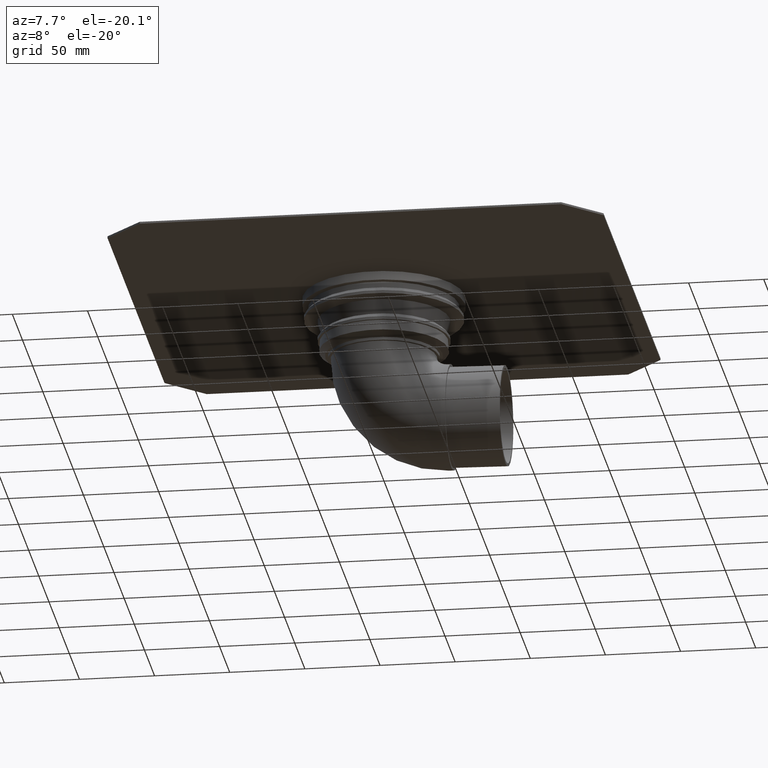
[diagram: clean part render]
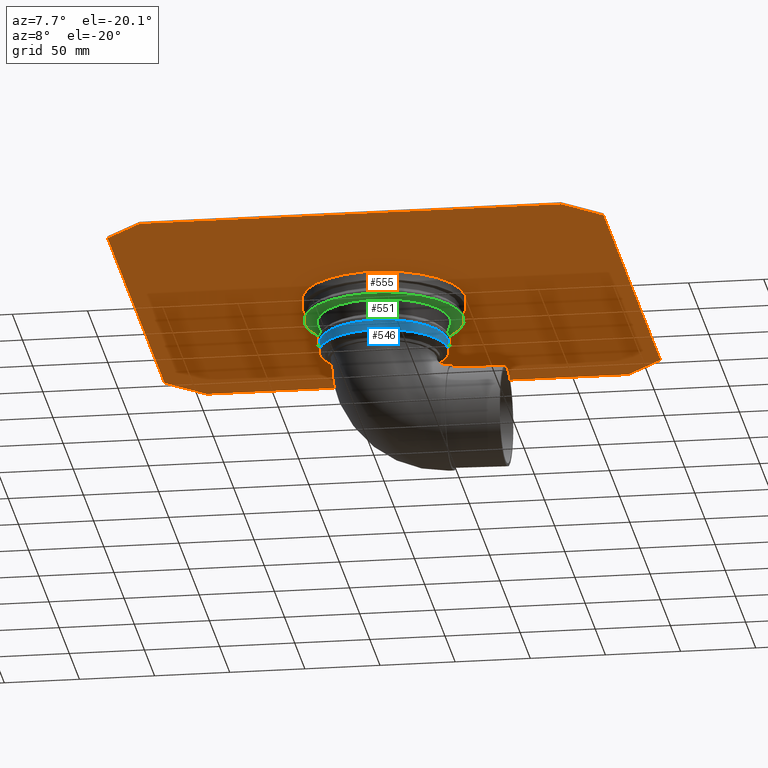
[diagram: same view with three faces highlighted in distinct colors, each labeled with its STEP entity id]
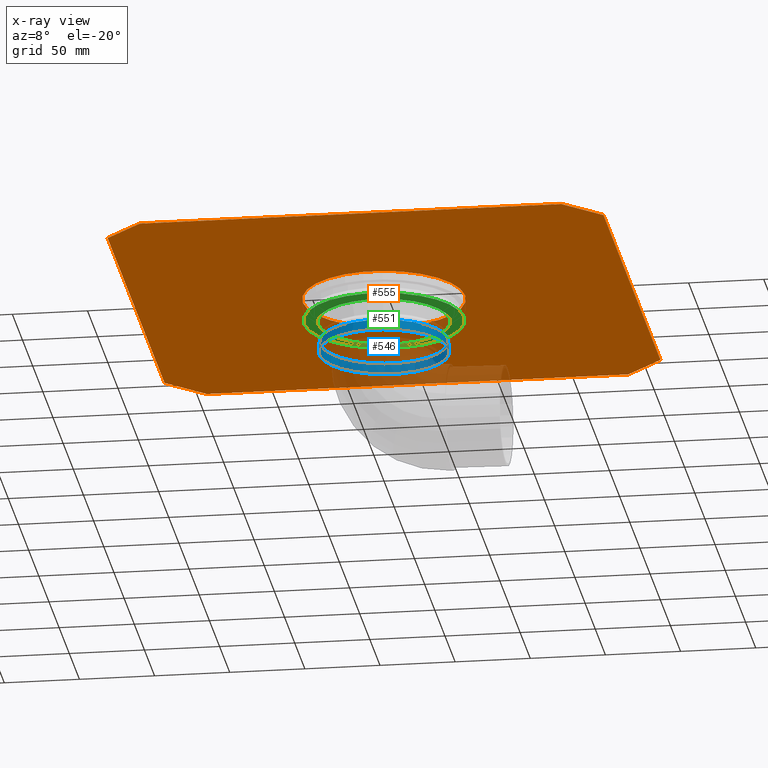
[diagram: x-ray of the same camera — body ghosted, the three highlighted faces saturated]
A machine part, auxiliary view with three faces highlighted in distinct colors.
The next image is the same camera in x-ray (body ghosted, the three faces saturated) — at least one of them is partly hidden behind the body in this view.
Their STEP definitions:

[orange] entity #555 — the highlighted planar face has unit normal (0, 0, 1).
#38=CIRCLE('',#599,54.);
#152=ORIENTED_EDGE('',*,*,#222,.F.);
#153=ORIENTED_EDGE('',*,*,#194,.F.);
#154=ORIENTED_EDGE('',*,*,#217,.F.);
#155=ORIENTED_EDGE('',*,*,#212,.F.);
#156=ORIENTED_EDGE('',*,*,#209,.F.);
#157=ORIENTED_EDGE('',*,*,#206,.F.);
#158=ORIENTED_EDGE('',*,*,#203,.F.);
#159=ORIENTED_EDGE('',*,*,#200,.F.);
#160=ORIENTED_EDGE('',*,*,#197,.F.);
#194=EDGE_CURVE('',#252,#253,#302,.T.);
#197=EDGE_CURVE('',#253,#255,#305,.T.);
#200=EDGE_CURVE('',#255,#257,#308,.T.);
#203=EDGE_CURVE('',#257,#259,#311,.T.);
#206=EDGE_CURVE('',#259,#261,#314,.T.);
#209=EDGE_CURVE('',#261,#263,#317,.T.);
#212=EDGE_CURVE('',#263,#265,#320,.T.);
#217=EDGE_CURVE('',#265,#252,#323,.T.);
#222=EDGE_CURVE('',#272,#272,#38,.F.);
#252=VERTEX_POINT('',#844);
#253=VERTEX_POINT('',#846);
#255=VERTEX_POINT('',#852);
#257=VERTEX_POINT('',#858);
#259=VERTEX_POINT('',#864);
#261=VERTEX_POINT('',#870);
#263=VERTEX_POINT('',#876);
#265=VERTEX_POINT('',#882);
#272=VERTEX_POINT('',#904);
#302=LINE('',#845,#326);
#305=LINE('',#851,#329);
#308=LINE('',#857,#332);
#311=LINE('',#863,#335);
#314=LINE('',#869,#338);
#317=LINE('',#875,#341);
#320=LINE('',#881,#344);
#323=LINE('',#891,#347);
#326=VECTOR('',#664,1000.);
#329=VECTOR('',#669,1000.);
#332=VECTOR('',#674,1000.);
#335=VECTOR('',#679,1000.);
#338=VECTOR('',#684,1000.);
#341=VECTOR('',#689,1000.);
#344=VECTOR('',#694,1000.);
#347=VECTOR('',#705,1000.);
#400=EDGE_LOOP('',(#152));
#401=EDGE_LOOP('',(#153,#154,#155,#156,#157,#158,#159,#160));
#478=FACE_BOUND('',#400,.T.);
#479=FACE_BOUND('',#401,.T.);
#519=PLANE('',#635);
#555=ADVANCED_FACE('',(#478,#479),#519,.F.);
#599=AXIS2_PLACEMENT_3D('',#903,#720,#721);
#635=AXIS2_PLACEMENT_3D('',#957,#792,#793);
#664=DIRECTION('',(0.,-1.,0.));
#669=DIRECTION('',(0.707106781186547,-0.707106781186547,0.));
#674=DIRECTION('',(1.,0.,0.));
#679=DIRECTION('',(0.707106781186547,0.707106781186547,0.));
#684=DIRECTION('',(0.,1.,0.));
#689=DIRECTION('',(-0.707106781186547,0.707106781186547,0.));
#694=DIRECTION('',(-1.,0.,0.));
#705=DIRECTION('',(-0.707106781186547,-0.707106781186547,0.));
#720=DIRECTION('',(0.,0.,1.));
#721=DIRECTION('',(1.,0.,0.));
#792=DIRECTION('',(0.,0.,1.));
#793=DIRECTION('',(1.,0.,0.));
#844=CARTESIAN_POINT('',(-165.,140.251262658471,0.));
#845=CARTESIAN_POINT('',(-165.,140.251262658471,0.));
#846=CARTESIAN_POINT('',(-165.,-140.251262658471,0.));
#851=CARTESIAN_POINT('',(-165.,-140.251262658471,0.));
#852=CARTESIAN_POINT('',(-140.251262658471,-165.,0.));
#857=CARTESIAN_POINT('',(-140.251262658471,-165.,0.));
#858=CARTESIAN_POINT('',(140.251262658471,-165.,0.));
#863=CARTESIAN_POINT('',(140.251262658471,-165.,0.));
#864=CARTESIAN_POINT('',(165.,-140.251262658471,0.));
#869=CARTESIAN_POINT('',(165.,-140.251262658471,0.));
#870=CARTESIAN_POINT('',(165.,140.251262658471,0.));
#875=CARTESIAN_POINT('',(165.,140.251262658471,0.));
#876=CARTESIAN_POINT('',(140.251262658471,165.,0.));
#881=CARTESIAN_POINT('',(140.251262658471,165.,0.));
#882=CARTESIAN_POINT('',(-140.251262658471,165.,0.));
#891=CARTESIAN_POINT('',(-140.251262658471,165.,0.));
#903=CARTESIAN_POINT('',(0.,0.,0.));
#904=CARTESIAN_POINT('',(54.,0.,0.));
#957=CARTESIAN_POINT('',(0.,0.,0.));

[blue] entity #546 — the highlighted conical surface has half-angle 4.086 deg.
#27=CONICAL_SURFACE('',#618,43.,0.0713074647852903);
#47=CIRCLE('',#617,43.);
#48=CIRCLE('',#619,42.5);
#134=ORIENTED_EDGE('',*,*,#232,.T.);
#135=ORIENTED_EDGE('',*,*,#231,.F.);
#231=EDGE_CURVE('',#281,#281,#47,.T.);
#232=EDGE_CURVE('',#282,#282,#48,.T.);
#281=VERTEX_POINT('',#931);
#282=VERTEX_POINT('',#934);
#382=EDGE_LOOP('',(#134));
#383=EDGE_LOOP('',(#135));
#460=FACE_BOUND('',#382,.T.);
#461=FACE_BOUND('',#383,.T.);
#546=ADVANCED_FACE('',(#460,#461),#27,.T.);
#617=AXIS2_PLACEMENT_3D('',#930,#756,#757);
#618=AXIS2_PLACEMENT_3D('',#932,#758,#759);
#619=AXIS2_PLACEMENT_3D('',#933,#760,#761);
#756=DIRECTION('',(0.,0.,-1.));
#757=DIRECTION('',(-1.,0.,0.));
#758=DIRECTION('',(0.,0.,-1.));
#759=DIRECTION('',(-1.,0.,0.));
#760=DIRECTION('',(0.,0.,-1.));
#761=DIRECTION('',(-1.,0.,0.));
#930=CARTESIAN_POINT('',(0.,0.,-37.));
#931=CARTESIAN_POINT('',(-43.,0.,-37.));
#932=CARTESIAN_POINT('',(0.,0.,-37.));
#933=CARTESIAN_POINT('',(0.,0.,-30.));
#934=CARTESIAN_POINT('',(-42.5,0.,-30.));

[green] entity #551 — the highlighted conical surface has half-angle 83.66 deg.
#30=CONICAL_SURFACE('',#628,44.,1.460139105621);
#52=CIRCLE('',#627,44.);
#53=CIRCLE('',#629,53.);
#144=ORIENTED_EDGE('',*,*,#237,.T.);
#145=ORIENTED_EDGE('',*,*,#236,.F.);
#236=EDGE_CURVE('',#286,#286,#52,.T.);
#237=EDGE_CURVE('',#287,#287,#53,.T.);
#286=VERTEX_POINT('',#946);
#287=VERTEX_POINT('',#949);
#392=EDGE_LOOP('',(#144));
#393=EDGE_LOOP('',(#145));
#470=FACE_BOUND('',#392,.T.);
#471=FACE_BOUND('',#393,.T.);
#551=ADVANCED_FACE('',(#470,#471),#30,.T.);
#627=AXIS2_PLACEMENT_3D('',#945,#776,#777);
#628=AXIS2_PLACEMENT_3D('',#947,#778,#779);
#629=AXIS2_PLACEMENT_3D('',#948,#780,#781);
#776=DIRECTION('',(0.,0.,-1.));
#777=DIRECTION('',(-1.,0.,0.));
#778=DIRECTION('',(0.,0.,1.));
#779=DIRECTION('',(1.,0.,0.));
#780=DIRECTION('',(0.,0.,-1.));
#781=DIRECTION('',(-1.,0.,0.));
#945=CARTESIAN_POINT('',(0.,0.,-16.));
#946=CARTESIAN_POINT('',(-44.,0.,-16.));
#947=CARTESIAN_POINT('',(0.,0.,-16.));
#948=CARTESIAN_POINT('',(0.,0.,-15.));
#949=CARTESIAN_POINT('',(-53.,0.,-15.));